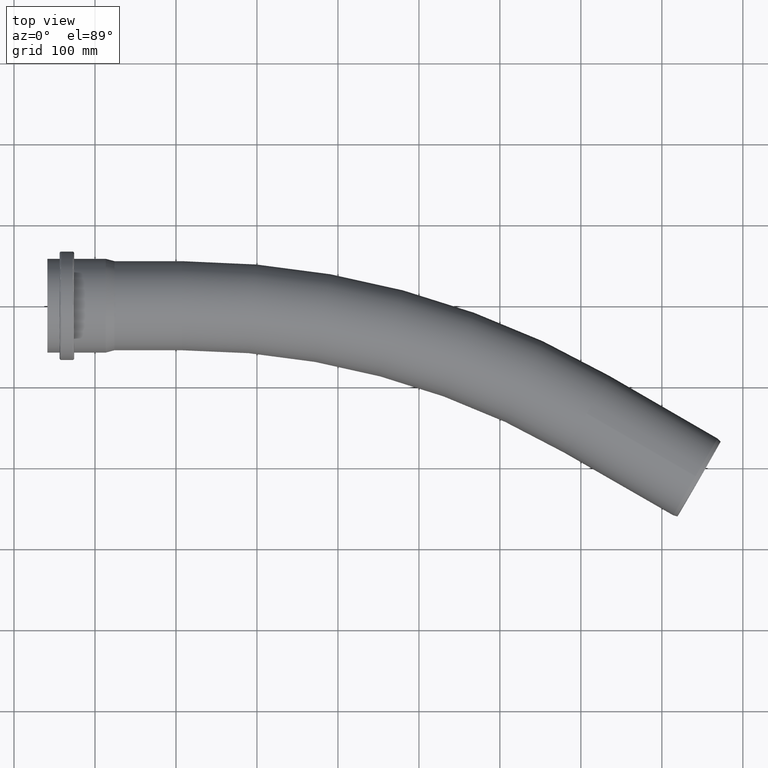
[diagram: clean part render]
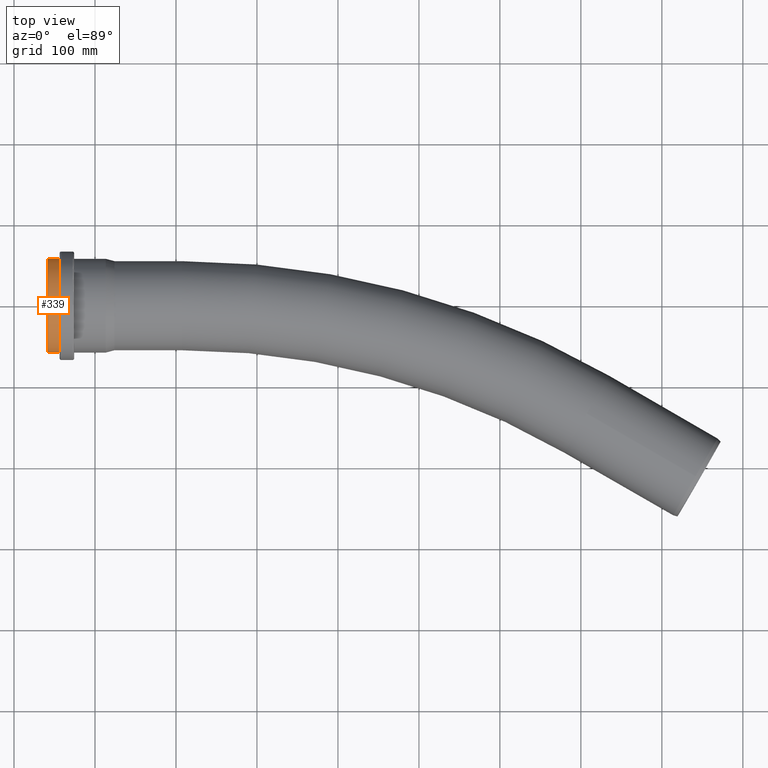
[diagram: same view with one face highlighted and labeled with its STEP entity id]
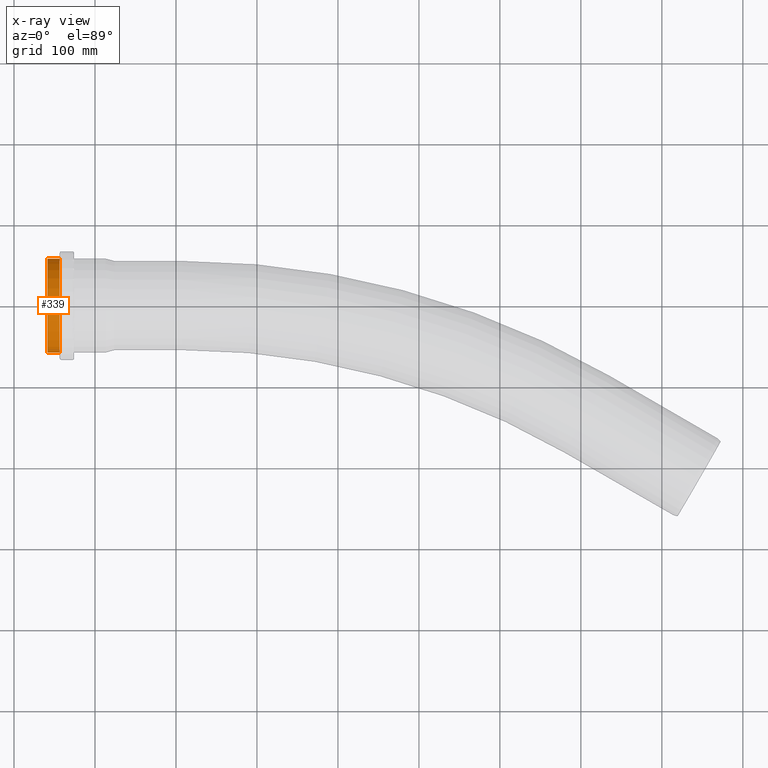
[diagram: x-ray of the same camera — body ghosted, the highlighted face saturated]
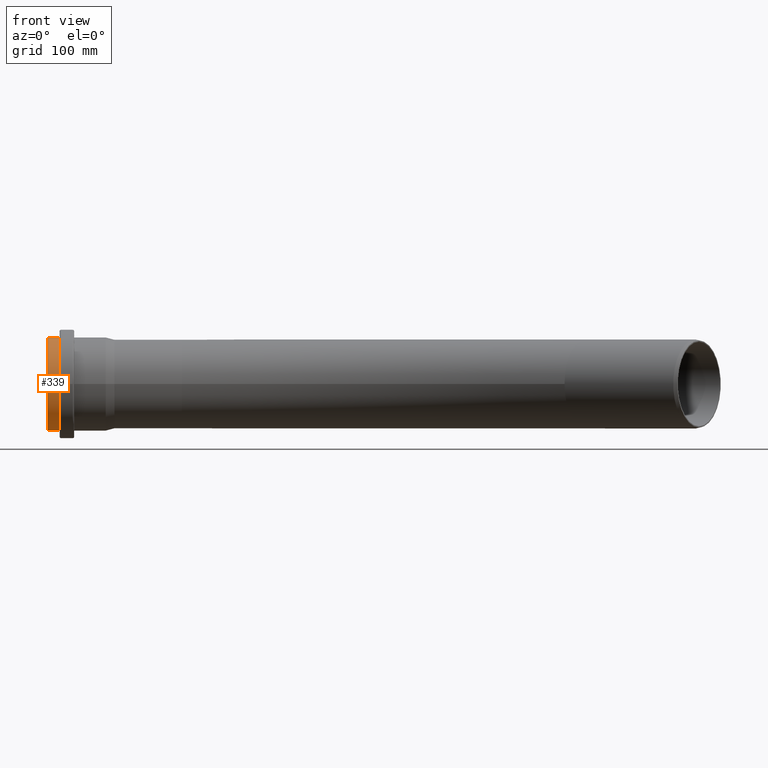
[diagram: same view with one face highlighted and labeled with its STEP entity id]
A machine part, top view. The second image highlights one B-rep face of the part: STEP entity #339.
The next image is the same camera in x-ray: the body ghosted, the highlighted face saturated — about 0% of this face is hidden behind the body in this view.
A second angle (front view) of the same face is appended — the face is thin or edge-on in the first view.
In plain terms, the highlighted cylindrical surface (bore or boss wall) has radius 57.9 mm, axis along (1, 0, 0).
Its self-contained STEP definition (entity closure, byte-faithful):
#40=CYLINDRICAL_SURFACE('',#417,57.9);
#63=FACE_OUTER_BOUND('',#92,.T.);
#92=EDGE_LOOP('',(#310,#311,#312,#313));
#105=LINE('',#639,#118);
#118=VECTOR('',#542,57.9);
#140=CIRCLE('',#395,57.9);
#150=CIRCLE('',#416,57.9);
#168=VERTEX_POINT('',#597);
#178=VERTEX_POINT('',#636);
#204=EDGE_CURVE('',#168,#168,#140,.T.);
#222=EDGE_CURVE('',#178,#178,#150,.T.);
#223=EDGE_CURVE('',#168,#178,#105,.T.);
#310=ORIENTED_EDGE('',*,*,#204,.F.);
#311=ORIENTED_EDGE('',*,*,#223,.T.);
#312=ORIENTED_EDGE('',*,*,#222,.T.);
#313=ORIENTED_EDGE('',*,*,#223,.F.);
#339=ADVANCED_FACE('',(#63),#40,.T.);
#395=AXIS2_PLACEMENT_3D('',#598,#488,#489);
#416=AXIS2_PLACEMENT_3D('',#637,#538,#539);
#417=AXIS2_PLACEMENT_3D('',#638,#540,#541);
#488=DIRECTION('center_axis',(1.,0.,0.));
#489=DIRECTION('ref_axis',(0.,0.,-1.));
#538=DIRECTION('center_axis',(1.,0.,0.));
#539=DIRECTION('ref_axis',(0.,0.,-1.));
#540=DIRECTION('center_axis',(1.,0.,0.));
#541=DIRECTION('ref_axis',(0.,1.,0.));
#542=DIRECTION('',(-1.,0.,0.));
#597=CARTESIAN_POINT('',(-143.725,-57.9,-7.09070496706317E-15));
#598=CARTESIAN_POINT('Origin',(-143.725,0.,0.));
#636=CARTESIAN_POINT('',(-158.725,-57.9,-7.09070496706317E-15));
#637=CARTESIAN_POINT('Origin',(-158.725,0.,0.));
#638=CARTESIAN_POINT('Origin',(-151.225,0.,0.));
#639=CARTESIAN_POINT('',(-151.225,-57.9,-7.09070496706317E-15));